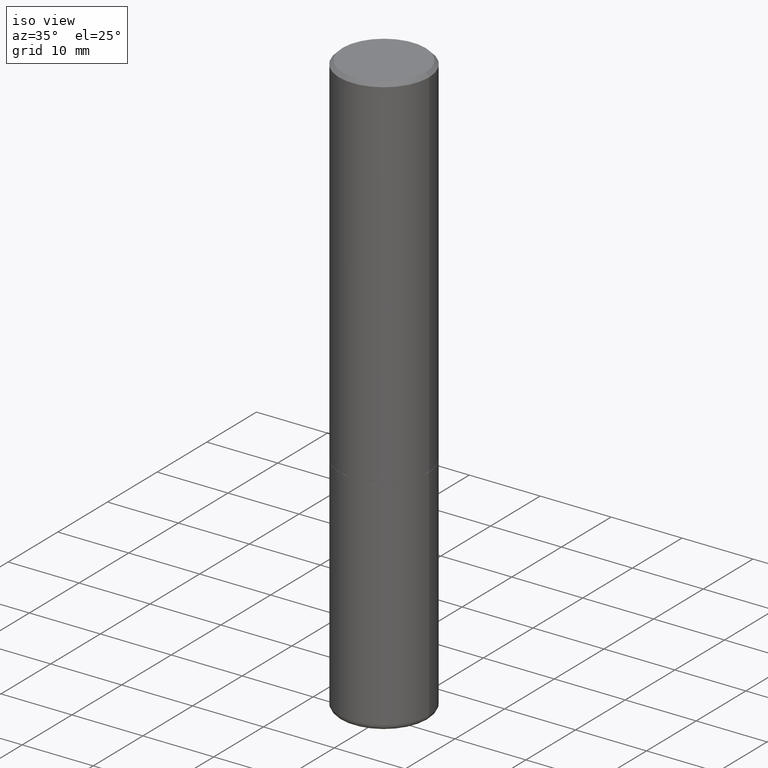
[diagram: clean part render]
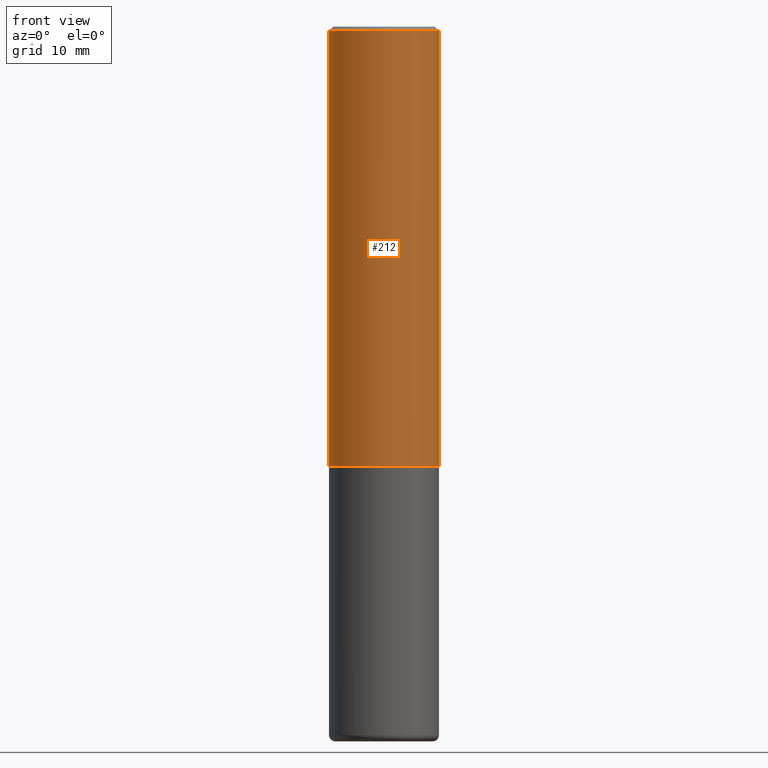
[diagram: tour spotlight — one face highlighted and labeled with its STEP entity id]
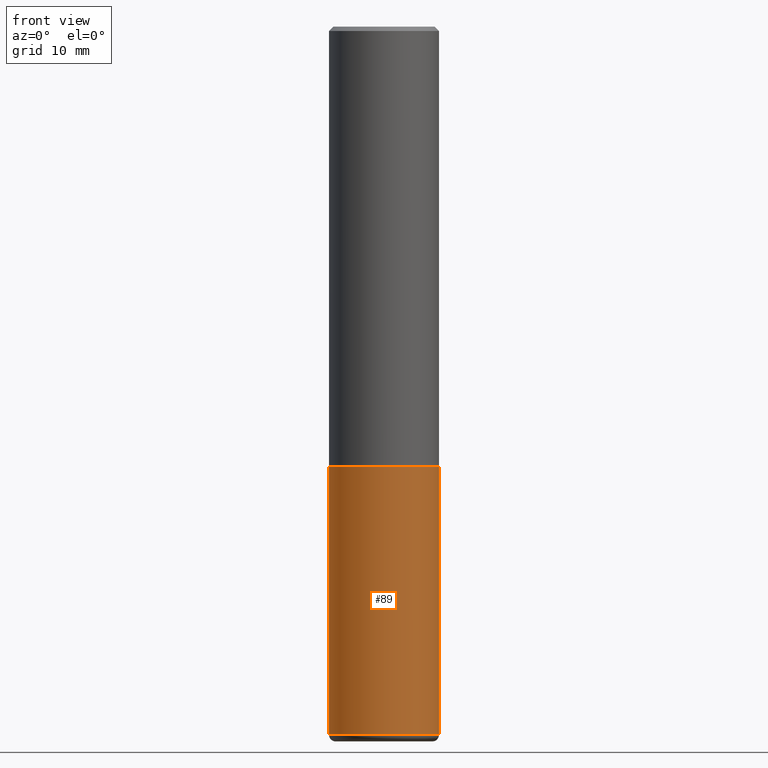
[diagram: tour spotlight — one face highlighted and labeled with its STEP entity id]
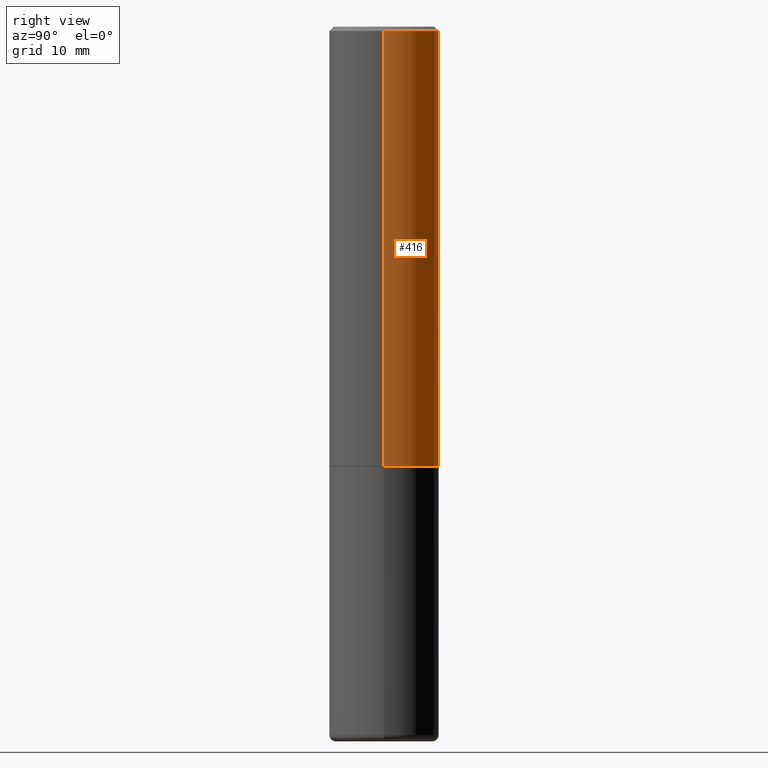
[diagram: tour spotlight — one face highlighted and labeled with its STEP entity id]
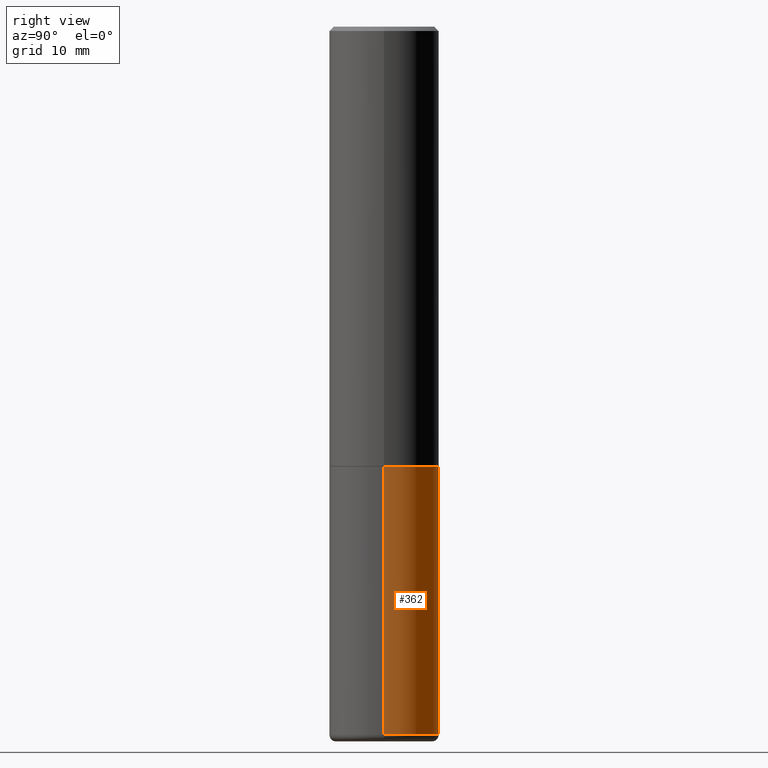
[diagram: tour spotlight — one face highlighted and labeled with its STEP entity id]
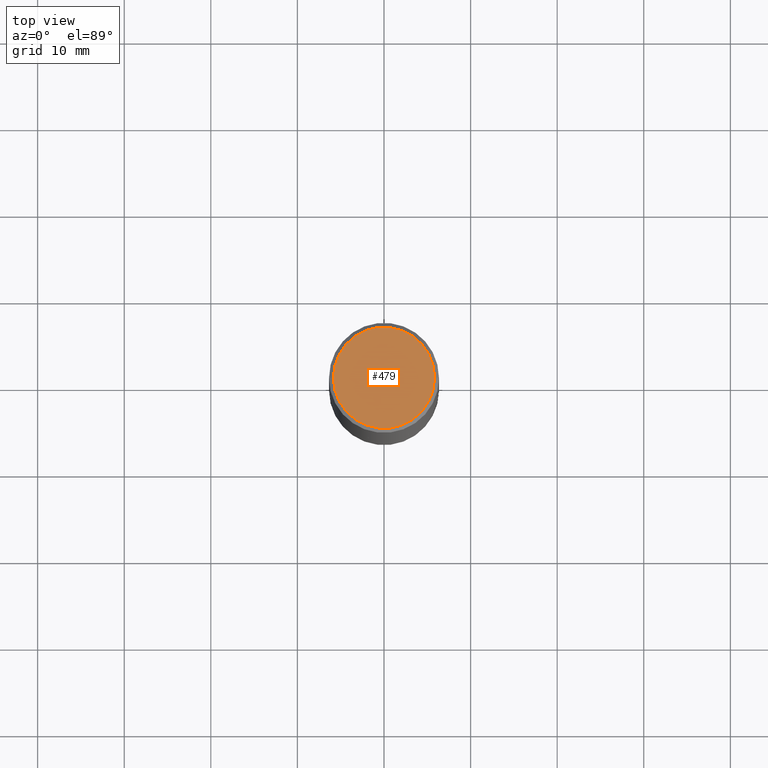
[diagram: tour spotlight — one face highlighted and labeled with its STEP entity id]
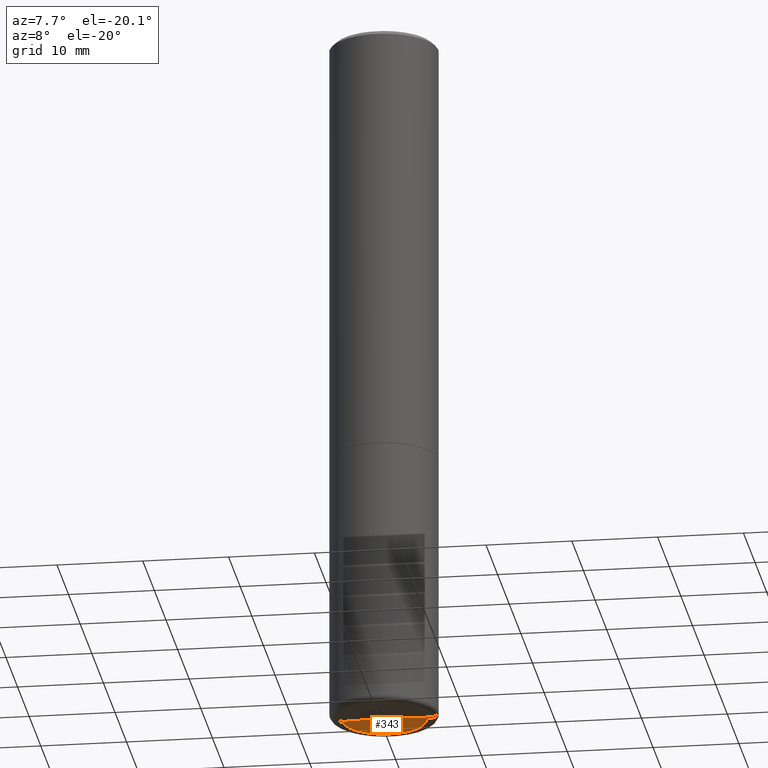
[diagram: tour spotlight — one face highlighted and labeled with its STEP entity id]
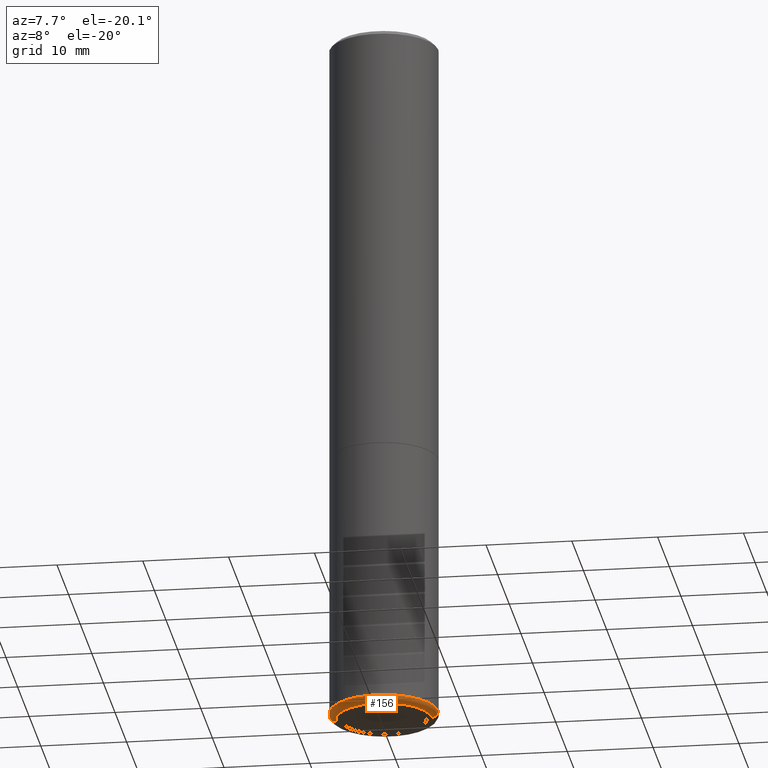
[diagram: tour spotlight — one face highlighted and labeled with its STEP entity id]
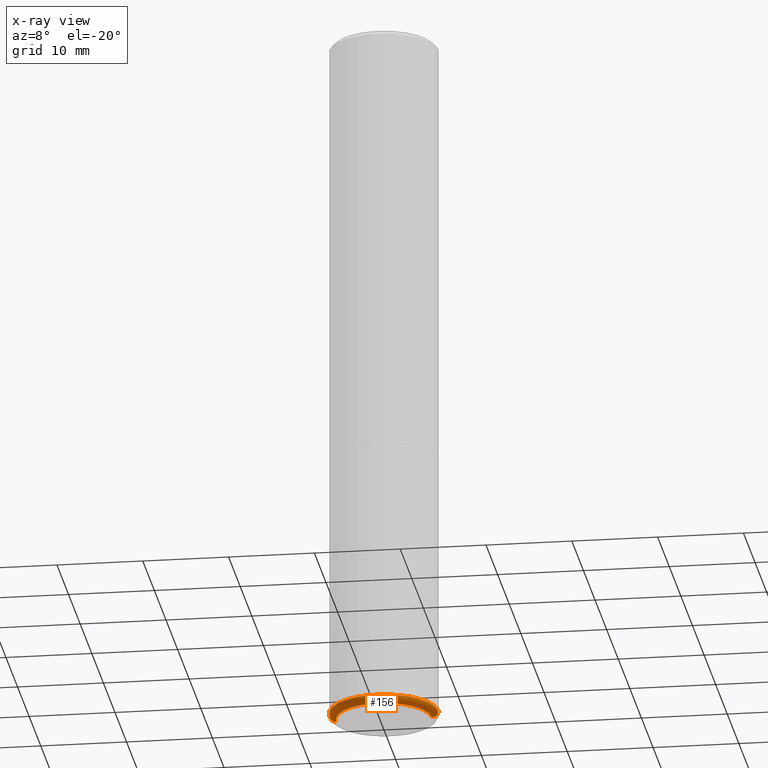
[diagram: x-ray of the same camera — body ghosted, this tour face saturated]
A machine part: a face-by-face anatomy tour. The part has 17 B-rep faces; the first image is the clean iso view, then the 7 largest visible faces are spotlighted one at a time (largest first), each with its STEP entity span.

Face 1 — front view, entity #212. In plain terms, the highlighted cylindrical surface (partial cylindrical patch) has radius 6.35 mm, axis along (-0, 0, 1).
Definition (entity closure, byte-faithful):
#3 = EDGE_LOOP ( 'NONE', ( #414, #29, #124, #303 ) ) ;
#24 = VECTOR ( 'NONE', #398, 39.37007874015748143 ) ;
#29 = ORIENTED_EDGE ( 'NONE', *, *, #218, .T. ) ;
#42 = DIRECTION ( 'NONE',  ( 1.000000000000000000, -6.982962677686266711E-15, 0.000000000000000000 ) ) ;
#44 = DIRECTION ( 'NONE',  ( -2.445468806185136597E-29, 3.491481338843145583E-15, 1.000000000000000000 ) ) ;
#53 = AXIS2_PLACEMENT_3D ( 'NONE', #182, #44, #42 ) ;
#64 = DIRECTION ( 'NONE',  ( 1.000000000000000000, -6.982962677686266711E-15, 0.000000000000000000 ) ) ;
#67 = VECTOR ( 'NONE', #324, 39.37007874015748143 ) ;
#75 = AXIS2_PLACEMENT_3D ( 'NONE', #273, #383, #425 ) ;
#79 = EDGE_CURVE ( 'NONE', #240, #238, #402, .T. ) ;
#84 = CARTESIAN_POINT ( 'NONE',  ( 0.2499999999999994449, -1.745740669421562733E-15, 1.219044193948981146E-29 ) ) ;
#95 = VERTEX_POINT ( 'NONE', #375 ) ;
#96 = CARTESIAN_POINT ( 'NONE',  ( -0.2499999999999994449, 1.776356839400246520E-15, -1.229733772563723783E-29 ) ) ;
#124 = ORIENTED_EDGE ( 'NONE', *, *, #228, .T. ) ;
#131 = CARTESIAN_POINT ( 'NONE',  ( -0.2499999999999993616, 1.675911042644698843E-15, -0.02000000000000011838 ) ) ;
#153 = LINE ( 'NONE', #84, #67 ) ;
#182 = CARTESIAN_POINT ( 'NONE',  ( 4.888492143564087591E-29, -6.979471196347447369E-15, -1.998999999999999888 ) ) ;
#184 = AXIS2_PLACEMENT_3D ( 'NONE', #335, #298, #64 ) ;
#212 = ADVANCED_FACE ( 'NONE', ( #281 ), #327, .T. ) ;
#215 = CIRCLE ( 'NONE', #53, 0.2499999999999995837 ) ;
#218 = EDGE_CURVE ( 'NONE', #95, #353, #215, .T. ) ;
#228 = EDGE_CURVE ( 'NONE', #353, #238, #153, .T. ) ;
#238 = VERTEX_POINT ( 'NONE', #361 ) ;
#240 = VERTEX_POINT ( 'NONE', #131 ) ;
#273 = CARTESIAN_POINT ( 'NONE',  ( 0.000000000000000000, 0.000000000000000000, 0.000000000000000000 ) ) ;
#281 = FACE_OUTER_BOUND ( 'NONE', #3, .T. ) ;
#294 = CARTESIAN_POINT ( 'NONE',  ( 0.2499999999999995837, -8.725211865769010891E-15, -1.998999999999999888 ) ) ;
#298 = DIRECTION ( 'NONE',  ( -2.445468806185136597E-29, 3.491481338843145583E-15, 1.000000000000000000 ) ) ;
#303 = ORIENTED_EDGE ( 'NONE', *, *, #79, .F. ) ;
#324 = DIRECTION ( 'NONE',  ( -2.445468806185136877E-29, 3.491481338843145188E-15, 1.000000000000000000 ) ) ;
#327 = CYLINDRICAL_SURFACE ( 'NONE', #75, 0.2499999999999994449 ) ;
#335 = CARTESIAN_POINT ( 'NONE',  ( 4.890937612370302936E-31, -6.982962677686332285E-17, -0.02000000000000011838 ) ) ;
#344 = EDGE_CURVE ( 'NONE', #95, #240, #463, .T. ) ;
#353 = VERTEX_POINT ( 'NONE', #294 ) ;
#361 = CARTESIAN_POINT ( 'NONE',  ( 0.2499999999999993616, -1.784954126219741850E-15, -0.02000000000000011838 ) ) ;
#375 = CARTESIAN_POINT ( 'NONE',  ( -0.2499999999999995559, -1.748293572161906447E-15, -1.998999999999999888 ) ) ;
#383 = DIRECTION ( 'NONE',  ( -2.445468806185136597E-29, 3.491481338843145583E-15, 1.000000000000000000 ) ) ;
#398 = DIRECTION ( 'NONE',  ( -2.445468806185136877E-29, 3.491481338843145188E-15, 1.000000000000000000 ) ) ;
#402 = CIRCLE ( 'NONE', #184, 0.2499999999999993616 ) ;
#414 = ORIENTED_EDGE ( 'NONE', *, *, #344, .F. ) ;
#425 = DIRECTION ( 'NONE',  ( 1.000000000000000000, -6.982962677686266711E-15, 4.876176775795935232E-29 ) ) ;
#463 = LINE ( 'NONE', #96, #24 ) ;

Face 2 — front view, entity #89. In plain terms, the highlighted cylindrical surface (partial cylindrical patch) has radius 6.35 mm, axis along (-0, 0, 1).
Definition (entity closure, byte-faithful):
#4 = EDGE_CURVE ( 'NONE', #46, #454, #482, .T. ) ;
#25 = CARTESIAN_POINT ( 'NONE',  ( -0.2499999999999995282, 1.776356839400247112E-15, -1.229733772563724063E-29 ) ) ;
#34 = DIRECTION ( 'NONE',  ( 1.000000000000000000, -6.982962677686270655E-15, 0.000000000000000000 ) ) ;
#46 = VERTEX_POINT ( 'NONE', #59 ) ;
#50 = AXIS2_PLACEMENT_3D ( 'NONE', #260, #110, #174 ) ;
#59 = CARTESIAN_POINT ( 'NONE',  ( -0.2499999999999996114, -7.336411449154026516E-15, -2.000000000000000000 ) ) ;
#73 = DIRECTION ( 'NONE',  ( -2.445468806185136597E-29, 3.491481338843145583E-15, 1.000000000000000000 ) ) ;
#89 = ADVANCED_FACE ( 'NONE', ( #437 ), #440, .T. ) ;
#101 = EDGE_CURVE ( 'NONE', #321, #46, #448, .T. ) ;
#110 = DIRECTION ( 'NONE',  ( -2.445468806185136597E-29, 3.491481338843145583E-15, 1.000000000000000000 ) ) ;
#114 = CARTESIAN_POINT ( 'NONE',  ( 7.874412349394904045E-29, -1.124257389942225570E-14, -3.220001142308074549 ) ) ;
#174 = DIRECTION ( 'NONE',  ( 1.000000000000000000, -6.982962677686265922E-15, 0.000000000000000000 ) ) ;
#192 = ORIENTED_EDGE ( 'NONE', *, *, #198, .T. ) ;
#198 = EDGE_CURVE ( 'NONE', #326, #454, #307, .T. ) ;
#209 = VECTOR ( 'NONE', #410, 39.37007874015748143 ) ;
#211 = CARTESIAN_POINT ( 'NONE',  ( 0.000000000000000000, 0.000000000000000000, 0.000000000000000000 ) ) ;
#213 = DIRECTION ( 'NONE',  ( 1.000000000000000000, -6.982962677686266711E-15, 4.876176775795935232E-29 ) ) ;
#221 = AXIS2_PLACEMENT_3D ( 'NONE', #114, #73, #34 ) ;
#242 = CIRCLE ( 'NONE', #221, 0.2499999999999994449 ) ;
#243 = CARTESIAN_POINT ( 'NONE',  ( 0.2499999999999994449, -1.298831456884381922E-14, -3.220001142308074549 ) ) ;
#260 = CARTESIAN_POINT ( 'NONE',  ( 4.890937612370273194E-29, -6.982962677686291165E-15, -2.000000000000000000 ) ) ;
#304 = VECTOR ( 'NONE', #406, 39.37007874015748143 ) ;
#307 = LINE ( 'NONE', #311, #209 ) ;
#308 = ORIENTED_EDGE ( 'NONE', *, *, #101, .F. ) ;
#311 = CARTESIAN_POINT ( 'NONE',  ( 0.2499999999999995282, -1.745740669421563325E-15, 1.219044193948981566E-29 ) ) ;
#321 = VERTEX_POINT ( 'NONE', #323 ) ;
#323 = CARTESIAN_POINT ( 'NONE',  ( -0.2499999999999994449, -7.336411449154026516E-15, -3.220001142308074549 ) ) ;
#326 = VERTEX_POINT ( 'NONE', #243 ) ;
#336 = AXIS2_PLACEMENT_3D ( 'NONE', #211, #371, #213 ) ;
#371 = DIRECTION ( 'NONE',  ( -2.445468806185136597E-29, 3.491481338843145583E-15, 1.000000000000000000 ) ) ;
#394 = ORIENTED_EDGE ( 'NONE', *, *, #4, .F. ) ;
#406 = DIRECTION ( 'NONE',  ( -2.445468806185136877E-29, 3.491481338843145188E-15, 1.000000000000000000 ) ) ;
#410 = DIRECTION ( 'NONE',  ( -2.445468806185136877E-29, 3.491481338843145188E-15, 1.000000000000000000 ) ) ;
#437 = FACE_OUTER_BOUND ( 'NONE', #458, .T. ) ;
#440 = CYLINDRICAL_SURFACE ( 'NONE', #336, 0.2499999999999995282 ) ;
#448 = LINE ( 'NONE', #25, #304 ) ;
#454 = VERTEX_POINT ( 'NONE', #457 ) ;
#456 = EDGE_CURVE ( 'NONE', #321, #326, #242, .T. ) ;
#457 = CARTESIAN_POINT ( 'NONE',  ( 0.2499999999999996114, -8.728703347107855476E-15, -2.000000000000000000 ) ) ;
#458 = EDGE_LOOP ( 'NONE', ( #308, #467, #192, #394 ) ) ;
#467 = ORIENTED_EDGE ( 'NONE', *, *, #456, .T. ) ;
#482 = CIRCLE ( 'NONE', #50, 0.2499999999999996114 ) ;

Face 3 — right view, entity #416. In plain terms, the highlighted cylindrical surface (partial cylindrical patch) has radius 6.35 mm, axis along (-0, 0, 1).
Definition (entity closure, byte-faithful):
#1 = CARTESIAN_POINT ( 'NONE',  ( 4.890937612370302936E-31, -6.982962677686332285E-17, -0.02000000000000011838 ) ) ;
#19 = EDGE_CURVE ( 'NONE', #238, #240, #488, .T. ) ;
#24 = VECTOR ( 'NONE', #398, 39.37007874015748143 ) ;
#67 = VECTOR ( 'NONE', #324, 39.37007874015748143 ) ;
#84 = CARTESIAN_POINT ( 'NONE',  ( 0.2499999999999994449, -1.745740669421562733E-15, 1.219044193948981146E-29 ) ) ;
#95 = VERTEX_POINT ( 'NONE', #375 ) ;
#96 = CARTESIAN_POINT ( 'NONE',  ( -0.2499999999999994449, 1.776356839400246520E-15, -1.229733772563723783E-29 ) ) ;
#131 = CARTESIAN_POINT ( 'NONE',  ( -0.2499999999999993616, 1.675911042644698843E-15, -0.02000000000000011838 ) ) ;
#139 = EDGE_CURVE ( 'NONE', #353, #95, #431, .T. ) ;
#144 = ORIENTED_EDGE ( 'NONE', *, *, #139, .T. ) ;
#145 = AXIS2_PLACEMENT_3D ( 'NONE', #377, #490, #261 ) ;
#149 = DIRECTION ( 'NONE',  ( -2.445468806185136597E-29, 3.491481338843145583E-15, 1.000000000000000000 ) ) ;
#153 = LINE ( 'NONE', #84, #67 ) ;
#171 = EDGE_LOOP ( 'NONE', ( #144, #356, #205, #226 ) ) ;
#175 = CYLINDRICAL_SURFACE ( 'NONE', #145, 0.2499999999999994449 ) ;
#205 = ORIENTED_EDGE ( 'NONE', *, *, #19, .F. ) ;
#216 = DIRECTION ( 'NONE',  ( -2.445468806185136597E-29, 3.491481338843145583E-15, 1.000000000000000000 ) ) ;
#226 = ORIENTED_EDGE ( 'NONE', *, *, #228, .F. ) ;
#228 = EDGE_CURVE ( 'NONE', #353, #238, #153, .T. ) ;
#238 = VERTEX_POINT ( 'NONE', #361 ) ;
#240 = VERTEX_POINT ( 'NONE', #131 ) ;
#258 = DIRECTION ( 'NONE',  ( 1.000000000000000000, -6.982962677686266711E-15, 0.000000000000000000 ) ) ;
#261 = DIRECTION ( 'NONE',  ( 1.000000000000000000, -6.982962677686266711E-15, 4.876176775795935232E-29 ) ) ;
#294 = CARTESIAN_POINT ( 'NONE',  ( 0.2499999999999995837, -8.725211865769010891E-15, -1.998999999999999888 ) ) ;
#297 = FACE_OUTER_BOUND ( 'NONE', #171, .T. ) ;
#314 = AXIS2_PLACEMENT_3D ( 'NONE', #342, #216, #373 ) ;
#324 = DIRECTION ( 'NONE',  ( -2.445468806185136877E-29, 3.491481338843145188E-15, 1.000000000000000000 ) ) ;
#342 = CARTESIAN_POINT ( 'NONE',  ( 4.888492143564087591E-29, -6.979471196347447369E-15, -1.998999999999999888 ) ) ;
#344 = EDGE_CURVE ( 'NONE', #95, #240, #463, .T. ) ;
#353 = VERTEX_POINT ( 'NONE', #294 ) ;
#356 = ORIENTED_EDGE ( 'NONE', *, *, #344, .T. ) ;
#361 = CARTESIAN_POINT ( 'NONE',  ( 0.2499999999999993616, -1.784954126219741850E-15, -0.02000000000000011838 ) ) ;
#373 = DIRECTION ( 'NONE',  ( 1.000000000000000000, -6.982962677686266711E-15, 0.000000000000000000 ) ) ;
#375 = CARTESIAN_POINT ( 'NONE',  ( -0.2499999999999995559, -1.748293572161906447E-15, -1.998999999999999888 ) ) ;
#377 = CARTESIAN_POINT ( 'NONE',  ( 0.000000000000000000, 0.000000000000000000, 0.000000000000000000 ) ) ;
#398 = DIRECTION ( 'NONE',  ( -2.445468806185136877E-29, 3.491481338843145188E-15, 1.000000000000000000 ) ) ;
#408 = AXIS2_PLACEMENT_3D ( 'NONE', #1, #149, #258 ) ;
#416 = ADVANCED_FACE ( 'NONE', ( #297 ), #175, .T. ) ;
#431 = CIRCLE ( 'NONE', #314, 0.2499999999999995837 ) ;
#463 = LINE ( 'NONE', #96, #24 ) ;
#488 = CIRCLE ( 'NONE', #408, 0.2499999999999993616 ) ;
#490 = DIRECTION ( 'NONE',  ( -2.445468806185136597E-29, 3.491481338843145583E-15, 1.000000000000000000 ) ) ;

Face 4 — right view, entity #362. In plain terms, the highlighted cylindrical surface (partial cylindrical patch) has radius 6.35 mm, axis along (-0, 0, 1).
Definition (entity closure, byte-faithful):
#17 = FACE_OUTER_BOUND ( 'NONE', #203, .T. ) ;
#25 = CARTESIAN_POINT ( 'NONE',  ( -0.2499999999999995282, 1.776356839400247112E-15, -1.229733772563724063E-29 ) ) ;
#46 = VERTEX_POINT ( 'NONE', #59 ) ;
#59 = CARTESIAN_POINT ( 'NONE',  ( -0.2499999999999996114, -7.336411449154026516E-15, -2.000000000000000000 ) ) ;
#101 = EDGE_CURVE ( 'NONE', #321, #46, #448, .T. ) ;
#104 = AXIS2_PLACEMENT_3D ( 'NONE', #142, #309, #451 ) ;
#115 = ORIENTED_EDGE ( 'NONE', *, *, #206, .T. ) ;
#119 = CARTESIAN_POINT ( 'NONE',  ( 4.890937612370273194E-29, -6.982962677686291165E-15, -2.000000000000000000 ) ) ;
#142 = CARTESIAN_POINT ( 'NONE',  ( 7.874412349394904045E-29, -1.124257389942225570E-14, -3.220001142308074549 ) ) ;
#164 = CYLINDRICAL_SURFACE ( 'NONE', #395, 0.2499999999999995282 ) ;
#168 = CIRCLE ( 'NONE', #104, 0.2499999999999994449 ) ;
#198 = EDGE_CURVE ( 'NONE', #326, #454, #307, .T. ) ;
#203 = EDGE_LOOP ( 'NONE', ( #115, #248, #317, #275 ) ) ;
#206 = EDGE_CURVE ( 'NONE', #326, #321, #168, .T. ) ;
#209 = VECTOR ( 'NONE', #410, 39.37007874015748143 ) ;
#243 = CARTESIAN_POINT ( 'NONE',  ( 0.2499999999999994449, -1.298831456884381922E-14, -3.220001142308074549 ) ) ;
#248 = ORIENTED_EDGE ( 'NONE', *, *, #101, .T. ) ;
#274 = EDGE_CURVE ( 'NONE', #454, #46, #372, .T. ) ;
#275 = ORIENTED_EDGE ( 'NONE', *, *, #198, .F. ) ;
#284 = DIRECTION ( 'NONE',  ( 1.000000000000000000, -6.982962677686265922E-15, 0.000000000000000000 ) ) ;
#304 = VECTOR ( 'NONE', #406, 39.37007874015748143 ) ;
#307 = LINE ( 'NONE', #311, #209 ) ;
#309 = DIRECTION ( 'NONE',  ( -2.445468806185136597E-29, 3.491481338843145583E-15, 1.000000000000000000 ) ) ;
#311 = CARTESIAN_POINT ( 'NONE',  ( 0.2499999999999995282, -1.745740669421563325E-15, 1.219044193948981566E-29 ) ) ;
#317 = ORIENTED_EDGE ( 'NONE', *, *, #274, .F. ) ;
#321 = VERTEX_POINT ( 'NONE', #323 ) ;
#323 = CARTESIAN_POINT ( 'NONE',  ( -0.2499999999999994449, -7.336411449154026516E-15, -3.220001142308074549 ) ) ;
#326 = VERTEX_POINT ( 'NONE', #243 ) ;
#332 = CARTESIAN_POINT ( 'NONE',  ( 0.000000000000000000, 0.000000000000000000, 0.000000000000000000 ) ) ;
#362 = ADVANCED_FACE ( 'NONE', ( #17 ), #164, .T. ) ;
#364 = DIRECTION ( 'NONE',  ( -2.445468806185136597E-29, 3.491481338843145583E-15, 1.000000000000000000 ) ) ;
#367 = DIRECTION ( 'NONE',  ( -2.445468806185136597E-29, 3.491481338843145583E-15, 1.000000000000000000 ) ) ;
#372 = CIRCLE ( 'NONE', #447, 0.2499999999999996114 ) ;
#395 = AXIS2_PLACEMENT_3D ( 'NONE', #332, #364, #433 ) ;
#406 = DIRECTION ( 'NONE',  ( -2.445468806185136877E-29, 3.491481338843145188E-15, 1.000000000000000000 ) ) ;
#410 = DIRECTION ( 'NONE',  ( -2.445468806185136877E-29, 3.491481338843145188E-15, 1.000000000000000000 ) ) ;
#433 = DIRECTION ( 'NONE',  ( 1.000000000000000000, -6.982962677686266711E-15, 4.876176775795935232E-29 ) ) ;
#447 = AXIS2_PLACEMENT_3D ( 'NONE', #119, #367, #284 ) ;
#448 = LINE ( 'NONE', #25, #304 ) ;
#451 = DIRECTION ( 'NONE',  ( 1.000000000000000000, -6.982962677686270655E-15, 0.000000000000000000 ) ) ;
#454 = VERTEX_POINT ( 'NONE', #457 ) ;
#457 = CARTESIAN_POINT ( 'NONE',  ( 0.2499999999999996114, -8.728703347107855476E-15, -2.000000000000000000 ) ) ;

Face 5 — top view, entity #479. In plain terms, the highlighted planar face has unit normal (0, -0, -1).
Definition (entity closure, byte-faithful):
#32 = AXIS2_PLACEMENT_3D ( 'NONE', #126, #474, #478 ) ;
#55 = EDGE_CURVE ( 'NONE', #444, #475, #162, .T. ) ;
#126 = CARTESIAN_POINT ( 'NONE',  ( 1.606081415867835940E-15, 0.2299999999999992606, -8.009064516888707148E-16 ) ) ;
#162 = CIRCLE ( 'NONE', #199, 0.2299999999999992606 ) ;
#167 = CARTESIAN_POINT ( 'NONE',  ( -1.043851414335219820E-46, 1.490343170380447200E-32, 4.268512490100411279E-18 ) ) ;
#179 = CARTESIAN_POINT ( 'NONE',  ( -0.2299999999999992606, 1.640996229256267392E-15, 4.268512490089056766E-18 ) ) ;
#180 = DIRECTION ( 'NONE',  ( 1.000000000000000000, -6.982962677686266711E-15, 4.876225828469324576E-29 ) ) ;
#193 = EDGE_CURVE ( 'NONE', #475, #444, #288, .T. ) ;
#199 = AXIS2_PLACEMENT_3D ( 'NONE', #167, #210, #370 ) ;
#200 = AXIS2_PLACEMENT_3D ( 'NONE', #487, #305, #180 ) ;
#210 = DIRECTION ( 'NONE',  ( -2.445468806185136597E-29, 3.491481338843145583E-15, 1.000000000000000000 ) ) ;
#272 = EDGE_LOOP ( 'NONE', ( #422, #462 ) ) ;
#288 = CIRCLE ( 'NONE', #200, 0.2299999999999992606 ) ;
#305 = DIRECTION ( 'NONE',  ( -2.445468806185136597E-29, 3.491481338843145583E-15, 1.000000000000000000 ) ) ;
#350 = CARTESIAN_POINT ( 'NONE',  ( 0.2299999999999992606, -1.681434332853594278E-15, 4.268512490111905999E-18 ) ) ;
#370 = DIRECTION ( 'NONE',  ( 1.000000000000000000, -6.982962677686266711E-15, 4.876225828469324576E-29 ) ) ;
#411 = FACE_OUTER_BOUND ( 'NONE', #272, .T. ) ;
#422 = ORIENTED_EDGE ( 'NONE', *, *, #193, .T. ) ;
#444 = VERTEX_POINT ( 'NONE', #350 ) ;
#462 = ORIENTED_EDGE ( 'NONE', *, *, #55, .T. ) ;
#466 = PLANE ( 'NONE',  #32 ) ;
#474 = DIRECTION ( 'NONE',  ( 2.438088387897960049E-29, -3.491481338843145188E-15, -1.000000000000000000 ) ) ;
#475 = VERTEX_POINT ( 'NONE', #179 ) ;
#478 = DIRECTION ( 'NONE',  ( -1.000000000000000000, 6.982962677686265922E-15, -4.876176775795935793E-29 ) ) ;
#479 = ADVANCED_FACE ( 'NONE', ( #411 ), #466, .F. ) ;
#487 = CARTESIAN_POINT ( 'NONE',  ( -1.043851414335219820E-46, 1.490343170380447200E-32, 4.268512490100411279E-18 ) ) ;

Face 6 — auxiliary view, entity #343. In plain terms, the highlighted conical surface has half-angle 88 deg.
Definition (entity closure, byte-faithful):
#5 = LINE ( 'NONE', #8, #10 ) ;
#8 = CARTESIAN_POINT ( 'NONE',  ( -0.1930732039350490925, -9.998278899655613929E-15, -3.249767298070359800 ) ) ;
#10 = VECTOR ( 'NONE', #476, 39.37007874015748143 ) ;
#11 = VERTEX_POINT ( 'NONE', #183 ) ;
#18 = VECTOR ( 'NONE', #172, 39.37007874015748143 ) ;
#66 = CARTESIAN_POINT ( 'NONE',  ( 0.1930732039350490925, -1.267108020581510942E-14, -3.249767298070359800 ) ) ;
#68 = DIRECTION ( 'NONE',  ( 1.000000000000000000, -6.982962677686269866E-15, 0.000000000000000000 ) ) ;
#122 = EDGE_CURVE ( 'NONE', #160, #396, #255, .T. ) ;
#132 = CIRCLE ( 'NONE', #163, 0.1930732039350490925 ) ;
#133 = EDGE_CURVE ( 'NONE', #396, #11, #132, .T. ) ;
#137 = CARTESIAN_POINT ( 'NONE',  ( 7.930716556418764265E-29, -1.132296138489128416E-14, -3.243025033220710451 ) ) ;
#151 = ORIENTED_EDGE ( 'NONE', *, *, #133, .F. ) ;
#152 = CARTESIAN_POINT ( 'NONE',  ( 7.947204554791619182E-29, -1.134650187679537143E-14, -3.249767298070359800 ) ) ;
#154 = ORIENTED_EDGE ( 'NONE', *, *, #122, .F. ) ;
#160 = VERTEX_POINT ( 'NONE', #137 ) ;
#163 = AXIS2_PLACEMENT_3D ( 'NONE', #485, #214, #68 ) ;
#172 = DIRECTION ( 'NONE',  ( 0.9993908270190957621, -6.978169709227541488E-15, -0.03489949670250108021 ) ) ;
#183 = CARTESIAN_POINT ( 'NONE',  ( -0.1930732039350490925, -9.998278899655613929E-15, -3.249767298070359800 ) ) ;
#214 = DIRECTION ( 'NONE',  ( -2.445468806185136597E-29, 3.491481338843145583E-15, 1.000000000000000000 ) ) ;
#231 = CONICAL_SURFACE ( 'NONE', #464, 0.1930732039350490925, 1.535889741755009918 ) ;
#255 = LINE ( 'NONE', #66, #18 ) ;
#262 = ORIENTED_EDGE ( 'NONE', *, *, #269, .T. ) ;
#269 = EDGE_CURVE ( 'NONE', #160, #11, #5, .T. ) ;
#319 = DIRECTION ( 'NONE',  ( 2.445468806185136597E-29, -3.491481338843145583E-15, -1.000000000000000000 ) ) ;
#343 = ADVANCED_FACE ( 'NONE', ( #424 ), #231, .F. ) ;
#393 = EDGE_LOOP ( 'NONE', ( #154, #262, #151 ) ) ;
#396 = VERTEX_POINT ( 'NONE', #477 ) ;
#424 = FACE_OUTER_BOUND ( 'NONE', #393, .T. ) ;
#434 = DIRECTION ( 'NONE',  ( -1.000000000000000000, 6.982962677686269866E-15, 0.000000000000000000 ) ) ;
#464 = AXIS2_PLACEMENT_3D ( 'NONE', #152, #319, #434 ) ;
#476 = DIRECTION ( 'NONE',  ( -0.9993908270190957621, 6.856857904024556470E-15, -0.03489949670250108021 ) ) ;
#477 = CARTESIAN_POINT ( 'NONE',  ( 0.1930732039350490925, -1.267108020581510942E-14, -3.249767298070359800 ) ) ;
#485 = CARTESIAN_POINT ( 'NONE',  ( 7.947204554791619182E-29, -1.134650187679537143E-14, -3.249767298070359800 ) ) ;

Face 7 — auxiliary view, entity #156. An x-ray twin of the same camera follows (body ghosted, this face saturated) — the face is partly hidden behind the body. In plain terms, the highlighted toroidal blend (fillet) surface has major radius 5.588 mm and minor (blend) radius 0.762 mm.
Definition (entity closure, byte-faithful):
#6 = VERTEX_POINT ( 'NONE', #384 ) ;
#20 = AXIS2_PLACEMENT_3D ( 'NONE', #130, #468, #359 ) ;
#21 = CARTESIAN_POINT ( 'NONE',  ( 7.947773620101693940E-29, -1.134731435124022443E-14, -3.250000000000000000 ) ) ;
#28 = FACE_OUTER_BOUND ( 'NONE', #195, .T. ) ;
#34 = DIRECTION ( 'NONE',  ( 1.000000000000000000, -6.982962677686270655E-15, 0.000000000000000000 ) ) ;
#38 = CARTESIAN_POINT ( 'NONE',  ( -0.2197382039350491145, -9.626098782756011188E-15, -3.250000000000000000 ) ) ;
#47 = DIRECTION ( 'NONE',  ( 7.105427357601001859E-15, 1.000000000000000000, -3.491481338843145583E-15 ) ) ;
#71 = EDGE_CURVE ( 'NONE', #430, #6, #445, .T. ) ;
#73 = DIRECTION ( 'NONE',  ( -2.445468806185136597E-29, 3.491481338843145583E-15, 1.000000000000000000 ) ) ;
#91 = ORIENTED_EDGE ( 'NONE', *, *, #71, .T. ) ;
#93 = AXIS2_PLACEMENT_3D ( 'NONE', #428, #47, #469 ) ;
#114 = CARTESIAN_POINT ( 'NONE',  ( 7.874412349394904045E-29, -1.124257389942225570E-14, -3.220001142308074549 ) ) ;
#118 = ORIENTED_EDGE ( 'NONE', *, *, #403, .T. ) ;
#130 = CARTESIAN_POINT ( 'NONE',  ( 0.2200000000000001676, -1.277882568851323406E-14, -3.220001142308074993 ) ) ;
#135 = DIRECTION ( 'NONE',  ( -2.445468806185136597E-29, 3.491481338843145583E-15, 1.000000000000000000 ) ) ;
#156 = ADVANCED_FACE ( 'NONE', ( #28 ), #277, .T. ) ;
#158 = ORIENTED_EDGE ( 'NONE', *, *, #254, .F. ) ;
#166 = DIRECTION ( 'NONE',  ( -2.445468806185136597E-29, 3.491481338843145583E-15, 1.000000000000000000 ) ) ;
#195 = EDGE_LOOP ( 'NONE', ( #158, #91, #118, #471 ) ) ;
#219 = CARTESIAN_POINT ( 'NONE',  ( 7.874412349394905166E-29, -1.124257389942225570E-14, -3.220001142308074993 ) ) ;
#221 = AXIS2_PLACEMENT_3D ( 'NONE', #114, #73, #34 ) ;
#242 = CIRCLE ( 'NONE', #221, 0.2499999999999994449 ) ;
#243 = CARTESIAN_POINT ( 'NONE',  ( 0.2499999999999994449, -1.298831456884381922E-14, -3.220001142308074549 ) ) ;
#254 = EDGE_CURVE ( 'NONE', #430, #321, #483, .T. ) ;
#276 = AXIS2_PLACEMENT_3D ( 'NONE', #21, #166, #480 ) ;
#277 = TOROIDAL_SURFACE ( 'NONE', #439, 0.2200000000000001676, 0.02999999999999953398 ) ;
#321 = VERTEX_POINT ( 'NONE', #323 ) ;
#323 = CARTESIAN_POINT ( 'NONE',  ( -0.2499999999999994449, -7.336411449154026516E-15, -3.220001142308074549 ) ) ;
#326 = VERTEX_POINT ( 'NONE', #243 ) ;
#359 = DIRECTION ( 'NONE',  ( 1.000000000000000000, -6.982962677686244622E-15, 0.000000000000000000 ) ) ;
#384 = CARTESIAN_POINT ( 'NONE',  ( 0.2197382039350491145, -1.288173802818048494E-14, -3.250000000000000000 ) ) ;
#403 = EDGE_CURVE ( 'NONE', #6, #326, #453, .T. ) ;
#428 = CARTESIAN_POINT ( 'NONE',  ( -0.2200000000000001676, -9.679379880750033900E-15, -3.220001142308074993 ) ) ;
#430 = VERTEX_POINT ( 'NONE', #38 ) ;
#439 = AXIS2_PLACEMENT_3D ( 'NONE', #219, #135, #443 ) ;
#443 = DIRECTION ( 'NONE',  ( 1.000000000000000000, -6.982962677686262766E-15, 4.883557194083111780E-29 ) ) ;
#445 = CIRCLE ( 'NONE', #276, 0.2197382039350491145 ) ;
#453 = CIRCLE ( 'NONE', #20, 0.02999999999999954439 ) ;
#456 = EDGE_CURVE ( 'NONE', #321, #326, #242, .T. ) ;
#468 = DIRECTION ( 'NONE',  ( -6.982962677686266711E-15, -1.000000000000000000, 3.491481338843145583E-15 ) ) ;
#469 = DIRECTION ( 'NONE',  ( -1.000000000000000000, 7.105427357600968727E-15, 0.000000000000000000 ) ) ;
#471 = ORIENTED_EDGE ( 'NONE', *, *, #456, .F. ) ;
#480 = DIRECTION ( 'NONE',  ( 1.000000000000000000, -6.982962677686265922E-15, 0.000000000000000000 ) ) ;
#483 = CIRCLE ( 'NONE', #93, 0.02999999999999954439 ) ;